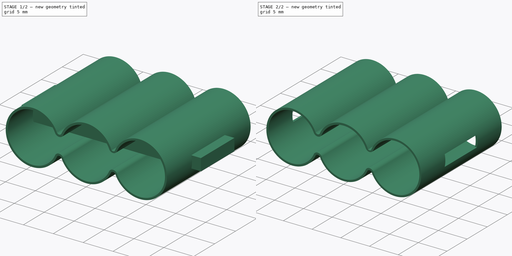
[diagram: build sequence overview — one tinted view per stage of 2, left to right]
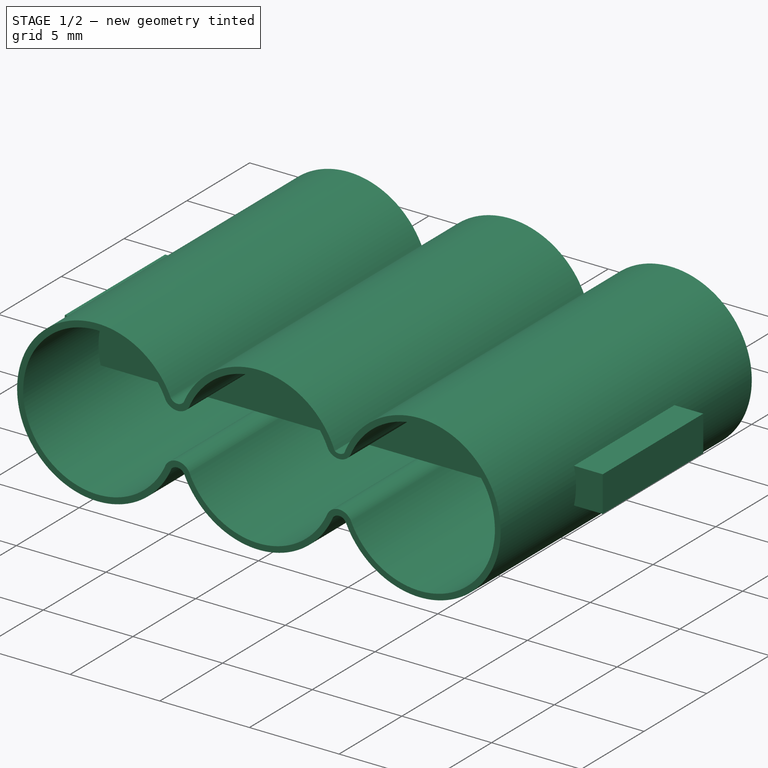
[diagram: stage 1 of 2 — iso view after this stage's code; geometry added in this stage tinted green]
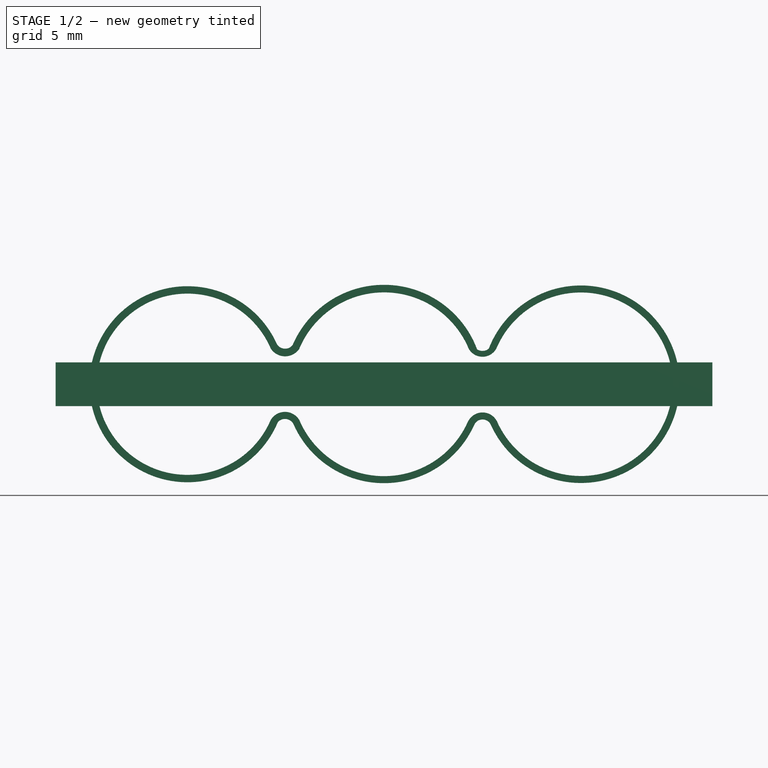
[diagram: stage 1 of 2 — front view after this stage's code; geometry added in this stage tinted green]
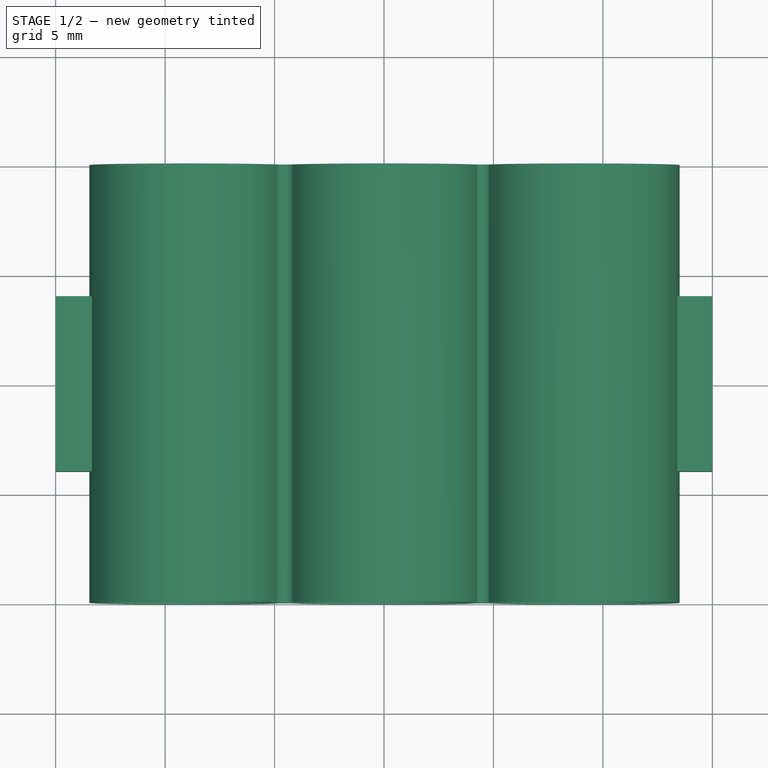
[diagram: stage 1 of 2 — top view after this stage's code; geometry added in this stage tinted green]
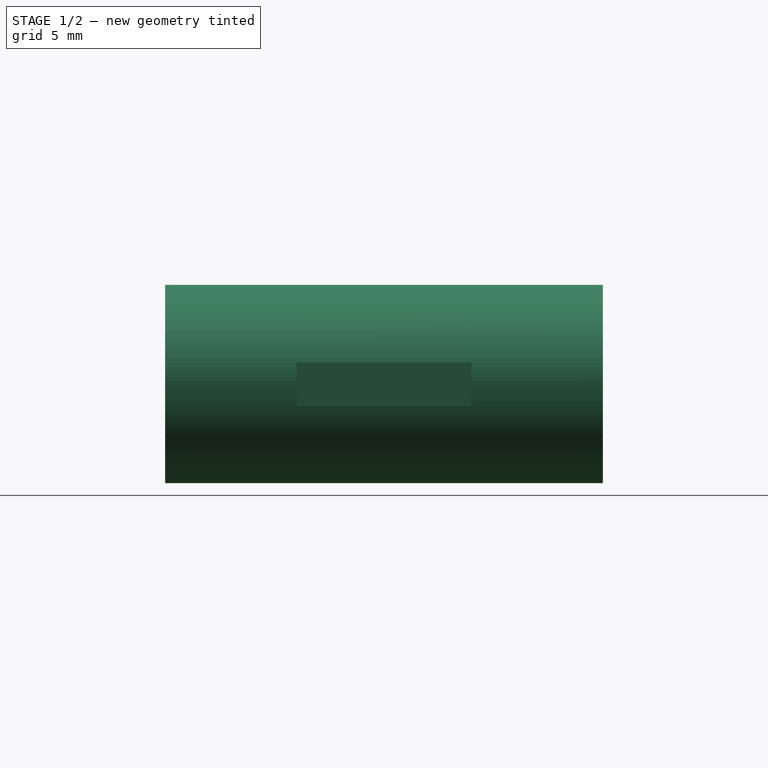
[diagram: stage 1 of 2 — right view after this stage's code; geometry added in this stage tinted green]
FCSTD DOCUMENT  (FreeCAD 0.19R24291 (Git))
Label: actuator8
License: All rights reserved
LicenseURL: http://en.wikipedia.org/wiki/All_rights_reserved
objects: Sketcher::SketchObject×2, Spreadsheet::Sheet×1, PartDesign::Pad×1, PartDesign::Body×1, Part::Box×1, Part::Cut×1
note: 7 computed .brp shape members not serialized (recipe doc carries the construction recipe); baked Part::Feature solids carry a one-line shape summary decoded from their .brp

FEATURE [Spreadsheet::Sheet] Spreadsheet
  cells = B2=pneumatic ; C2=actuator ; D2=three-section; E2==9mm; B4=soft cylinders; D4=out; E4=in; C5=r ; D5(cyl_r_o)=4.5; E5(cyl_r_in)=4.2; B7=shoulder; D7(shuld)=9
FEATURE [Sketcher::SketchObject] Sketch
  FullyConstrained = false
  MapMode = 5
  Placement = pos=(0,0,0) rot=(1,0,0;1.5708rad)
  Support = -> [XZ_Plane]
  expr: Constraints[11] = Spreadsheet.cyl_r_in
  expr: Constraints[13] = Spreadsheet.cyl_r_in
  expr: Constraints[7] = Spreadsheet.shuld
  expr: Constraints[6] = Spreadsheet.shuld
  expr: Constraints[5] = Spreadsheet.cyl_r_o
  expr: Constraints[4] = Spreadsheet.cyl_r_o
  expr: Constraints[12] = Spreadsheet.cyl_r_in
  expr: Constraints[1] = Spreadsheet.cyl_r_o
  sketch-geometry (16):
    g0: ArcOfCircle CenterX=0 CenterY=0 CenterZ=0 NormalX=0 NormalY=0 NormalZ=1 AngleXU=0 Radius=4.5 StartAngle=3.53897 EndAngle=5.86637
    g1: ArcOfCircle CenterX=-9 CenterY=0 CenterZ=0 NormalX=0 NormalY=0 NormalZ=1 AngleXU=0 Radius=4.5 StartAngle=0.407207 EndAngle=5.88776
    g2: ArcOfCircle CenterX=9 CenterY=0 CenterZ=0 NormalX=0 NormalY=0 NormalZ=1 AngleXU=0 Radius=4.5 StartAngle=3.55697 EndAngle=9.04236
    g3: ArcOfCircle CenterX=0 CenterY=0 CenterZ=0 NormalX=0 NormalY=0 NormalZ=1 AngleXU=0 Radius=4.2 StartAngle=3.54071 EndAngle=5.86248
    g4: ArcOfCircle CenterX=-9 CenterY=0 CenterZ=0 NormalX=0 NormalY=0 NormalZ=1 AngleXU=0 Radius=4.2 StartAngle=0.400501 EndAngle=5.88794
    g5: ArcOfCircle CenterX=9 CenterY=0 CenterZ=0 NormalX=0 NormalY=0 NormalZ=1 AngleXU=0 Radius=4.2 StartAngle=3.55872 EndAngle=9.02431
    g6: ArcOfCircle CenterX=0 CenterY=0 CenterZ=0 NormalX=0 NormalY=0 NormalZ=1 AngleXU=0 Radius=4.2 StartAngle=0.411459 EndAngle=2.74323
    g7: ArcOfCircle CenterX=0 CenterY=0 CenterZ=0 NormalX=0 NormalY=0 NormalZ=1 AngleXU=0 Radius=4.5 StartAngle=0.384244 EndAngle=2.73628
    g8: ArcOfCircle CenterX=-4.49939 CenterY=1.99308 CenterZ=0 NormalX=0 NormalY=0 NormalZ=1 AngleXU=0 Radius=0.424634 StartAngle=3.66126 EndAngle=5.74211
    g9: ArcOfCircle CenterX=-4.49939 CenterY=1.99308 CenterZ=0 NormalX=0 NormalY=0 NormalZ=1 AngleXU=0 Radius=0.726016 StartAngle=3.65342 EndAngle=5.75826
    g10: ArcOfCircle CenterX=-4.50187 CenterY=-2.04426 CenterZ=0 NormalX=0 NormalY=0 NormalZ=1 AngleXU=0 Radius=0.754474 StartAngle=0.577886 EndAngle=2.53985
    g11: ArcOfCircle CenterX=-4.50187 CenterY=-2.04426 CenterZ=0 NormalX=0 NormalY=0 NormalZ=1 AngleXU=0 Radius=0.464673 StartAngle=0.709586 EndAngle=2.40876
    g12: ArcOfCircle CenterX=4.50233 CenterY=2.00473 CenterZ=0 NormalX=0 NormalY=0 NormalZ=1 AngleXU=0 Radius=0.729266 StartAngle=3.60342 EndAngle=5.75529
    g13: ArcOfCircle CenterX=4.50233 CenterY=2.00473 CenterZ=0 NormalX=0 NormalY=0 NormalZ=1 AngleXU=0 Radius=0.458522 StartAngle=3.90757 EndAngle=5.50084
    g14: ArcOfCircle CenterX=4.50046 CenterY=-2.04794 CenterZ=0 NormalX=0 NormalY=0 NormalZ=1 AngleXU=0 Radius=0.745071 StartAngle=0.483492 EndAngle=2.67877
    g15: ArcOfCircle CenterX=4.50046 CenterY=-2.04794 CenterZ=0 NormalX=0 NormalY=0 NormalZ=1 AngleXU=0 Radius=0.447124 StartAngle=0.545626 EndAngle=2.61135
  constraints (37):
    c: Coincident(g0,g-1)
    c: Radius(g0) = 4.5
    c: PointOnObject(g1,g-1)
    c: PointOnObject(g2,g-1)
    c: Radius(g2) = 4.5
    c: Radius(g1) = 4.5
    c: Distance(g0,g1) = 9
    c: Distance(g0,g2) = 9
    c: Coincident(g3,g0)
    c: Coincident(g4,g1)
    c: Coincident(g5,g2)
    c: Radius(g4) = 4.2
    c: Radius(g3) = 4.2
    c: Radius(g5) = 4.2
    c: Equal(g3,g6)
    c: Coincident(g3,g6)
    c: Equal(g0,g7)
    c: Coincident(g0,g7)
    c: Coincident(g8,g1)
    c: Coincident(g8,g7)
    c: Coincident(g9,g8)
    c: Coincident(g9,g4)
    c: Coincident(g9,g6)
    c: Coincident(g10,g4)
    c: Coincident(g10,g3)
    c: Coincident(g11,g10)
    c: Coincident(g11,g1)
    c: Coincident(g11,g0)
    c: Coincident(g12,g6)
    c: Coincident(g12,g5)
    c: Coincident(g13,g12)
    c: Coincident(g13,g7)
    c: Coincident(g14,g3)
    c: Coincident(g14,g5)
    c: Coincident(g15,g14)
    c: Coincident(g15,g0)
    c: Coincident(g15,g2)
FEATURE [Sketcher::SketchObject] Sketch001
  FullyConstrained = false
  MapMode = 5
  Placement = pos=(0,0,0) rot=(1,0,0;1.5708rad)
  Support = -> [XZ_Plane]
  sketch-geometry (16):
    g0: ArcOfCircle CenterX=0 CenterY=0 CenterZ=0 NormalX=0 NormalY=0 NormalZ=1 AngleXU=0 Radius=4.19663 StartAngle=0.393932 EndAngle=2.74956
    g1: ArcOfCircle CenterX=0 CenterY=0 CenterZ=0 NormalX=0 NormalY=0 NormalZ=1 AngleXU=0 Radius=4.54277 StartAngle=0.358301 EndAngle=2.73604
    g2: ArcOfCircle CenterX=0 CenterY=0 CenterZ=0 NormalX=0 NormalY=0 NormalZ=1 AngleXU=0 Radius=4.52045 StartAngle=3.55389 EndAngle=5.85773
    g3: ArcOfCircle CenterX=0 CenterY=0 CenterZ=0 NormalX=0 NormalY=0 NormalZ=1 AngleXU=0 Radius=4.19871 StartAngle=3.54539 EndAngle=5.85822
    g4: ArcOfCircle CenterX=-8.97846 CenterY=0 CenterZ=0 NormalX=0 NormalY=0 NormalZ=1 AngleXU=0 Radius=4.13996 StartAngle=0.401884 EndAngle=5.87998
    g5: ArcOfCircle CenterX=-8.97846 CenterY=0 CenterZ=0 NormalX=0 NormalY=0 NormalZ=1 AngleXU=0 Radius=4.47856 StartAngle=0.427751 EndAngle=5.88617
    g6: ArcOfCircle CenterX=8.99435 CenterY=0 CenterZ=0 NormalX=0 NormalY=0 NormalZ=1 AngleXU=0 Radius=4.19158 StartAngle=3.55542 EndAngle=9.02296
    g7: ArcOfCircle CenterX=8.99435 CenterY=0 CenterZ=0 NormalX=0 NormalY=0 NormalZ=1 AngleXU=0 Radius=4.51232 StartAngle=3.56111 EndAngle=9.05666
    g8: ArcOfCircle CenterX=-4.51775 CenterY=2.05955 CenterZ=0 NormalX=0 NormalY=0 NormalZ=1 AngleXU=0 Radius=0.43523 StartAngle=3.62353 EndAngle=5.62187
    g9: ArcOfCircle CenterX=-4.51775 CenterY=2.05955 CenterZ=0 NormalX=0 NormalY=0 NormalZ=1 AngleXU=0 Radius=0.785519 StartAngle=3.73644 EndAngle=5.6636
    g10: ArcOfCircle CenterX=-4.52321 CenterY=-2.02216 CenterZ=0 NormalX=0 NormalY=0 NormalZ=1 AngleXU=0 Radius=0.759733 StartAngle=0.512348 EndAngle=2.59055
    g11: ArcOfCircle CenterX=-4.52321 CenterY=-2.02216 CenterZ=0 NormalX=0 NormalY=0 NormalZ=1 AngleXU=0 Radius=0.435893 StartAngle=0.50459 EndAngle=2.41234
    g12: ArcOfCircle CenterX=4.49796 CenterY=1.97665 CenterZ=0 NormalX=0 NormalY=0 NormalZ=1 AngleXU=0 Radius=0.454432 StartAngle=4.14642 EndAngle=5.39419
    g13: ArcOfCircle CenterX=4.49796 CenterY=1.97665 CenterZ=0 NormalX=0 NormalY=0 NormalZ=1 AngleXU=0 Radius=0.722292 StartAngle=3.67279 EndAngle=5.79724
    g14: ArcOfCircle CenterX=4.50184 CenterY=-2.02736 CenterZ=0 NormalX=0 NormalY=0 NormalZ=1 AngleXU=0 Radius=0.738624 StartAngle=0.481209 EndAngle=2.72882
    g15: ArcOfCircle CenterX=4.50184 CenterY=-2.02736 CenterZ=0 NormalX=0 NormalY=0 NormalZ=1 AngleXU=0 Radius=0.416977 StartAngle=0.471499 EndAngle=2.74355
  constraints (28):
    c: Coincident(g0,g-1)
    c: Coincident(g1,g0)
    c: Coincident(g2,g0)
    c: Coincident(g3,g0)
    c: PointOnObject(g4,g-1)
    c: Coincident(g5,g4)
    c: PointOnObject(g6,g-1)
    c: Coincident(g7,g6)
    c: Coincident(g8,g5)
    c: Coincident(g8,g1)
    c: Coincident(g9,g8)
    c: Coincident(g9,g4)
    c: Coincident(g9,g0)
    c: Coincident(g10,g4)
    c: Coincident(g10,g3)
    c: Coincident(g11,g10)
    c: Coincident(g11,g5)
    c: Coincident(g11,g2)
    c: Coincident(g12,g1)
    c: Coincident(g12,g7)
    c: Coincident(g13,g12)
    c: Coincident(g13,g0)
    c: Coincident(g13,g6)
    c: Coincident(g14,g3)
    c: Coincident(g14,g6)
    c: Coincident(g15,g14)
    c: Coincident(g15,g2)
    c: Coincident(g15,g7)
FEATURE [PartDesign::Pad] Pad
  Direction = (1,1,1)
  Length = 20
  Length2 = 100
  Placement = pos=(0,0,0) rot=(1,0,0;1.5708rad)
  Profile = -> Sketch001
  Type = 0
FEATURE [PartDesign::Body] Body
  Group = -> [Sketch,Sketch001,Pad]
  Origin = -> Origin
  Tip = -> Pad
FEATURE [Part::Box] Box  label="Cube"
  AttacherType = Attacher::AttachEngine3D
  Height = 2
  Length = 30
  Placement = pos=(-15,-14,-1) rot=(0,0,1;0rad)
  Width = 8
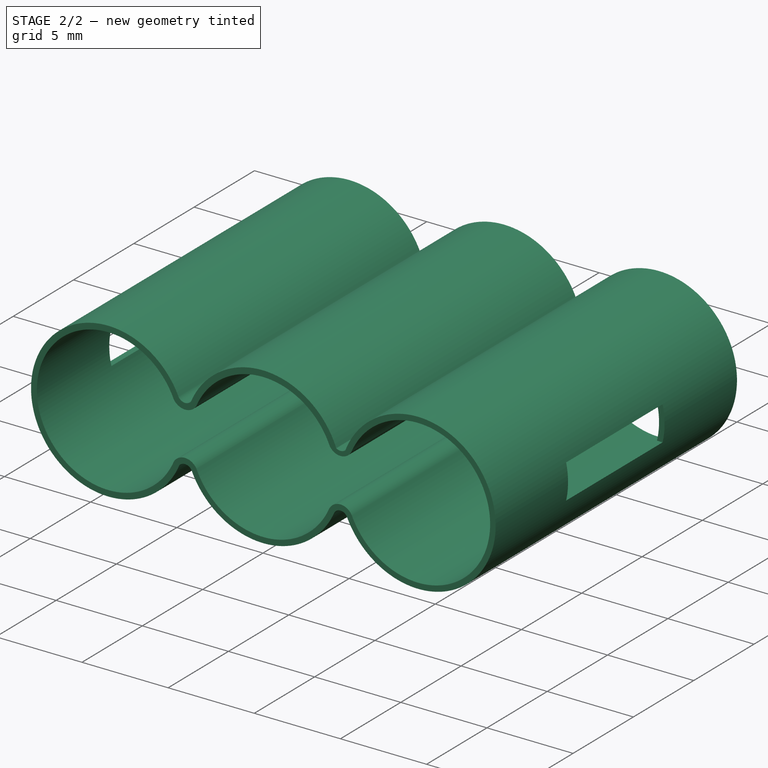
[diagram: stage 2 of 2 — iso view after this stage's code; geometry added in this stage tinted green]
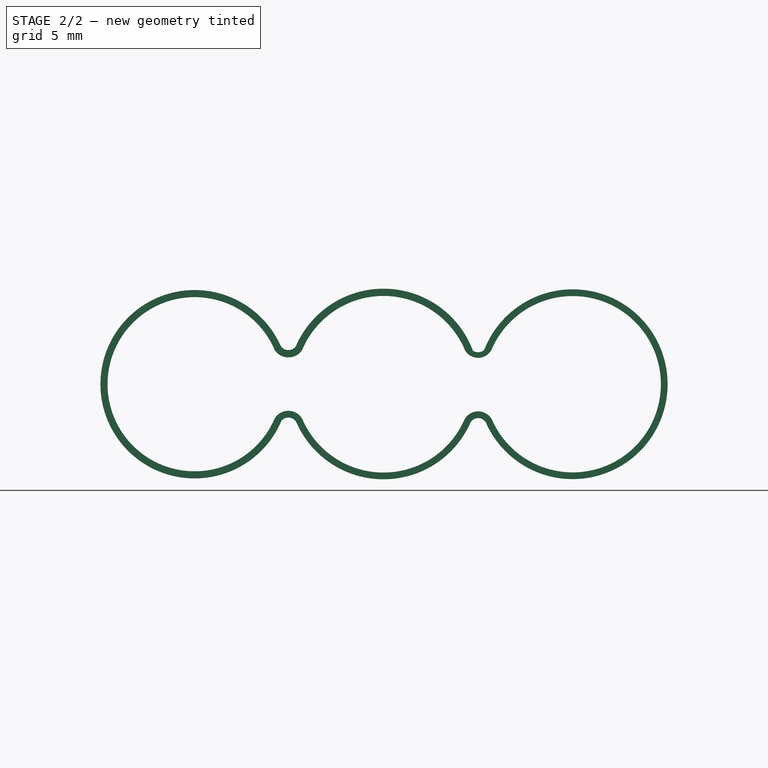
[diagram: stage 2 of 2 — front view after this stage's code; geometry added in this stage tinted green]
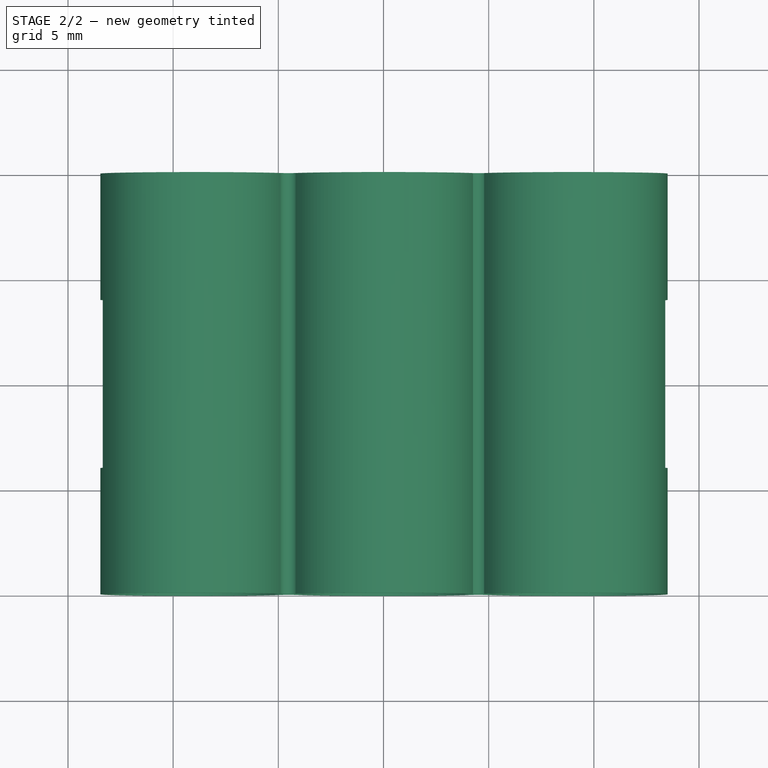
[diagram: stage 2 of 2 — top view after this stage's code; geometry added in this stage tinted green]
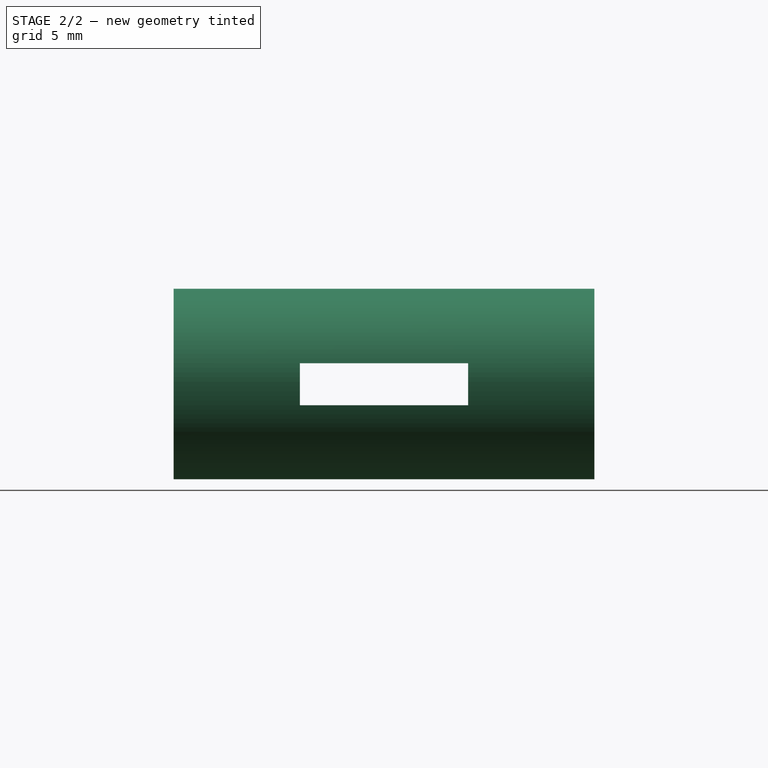
[diagram: stage 2 of 2 — right view after this stage's code; geometry added in this stage tinted green]
FEATURE [Part::Cut] Cut
  Base = -> Body
  Tool = -> Box
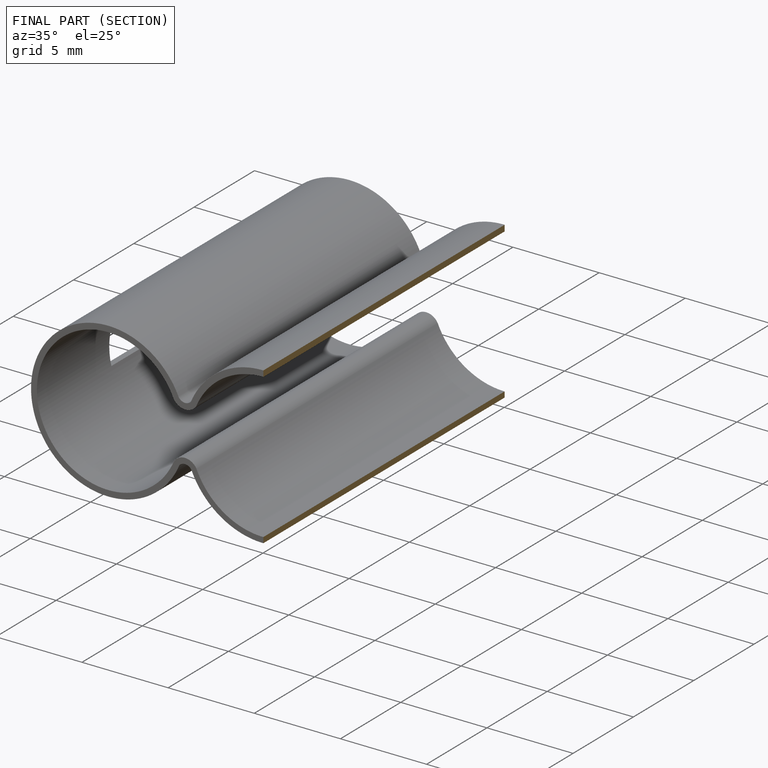
[diagram: finished part — half-section view (interior)]
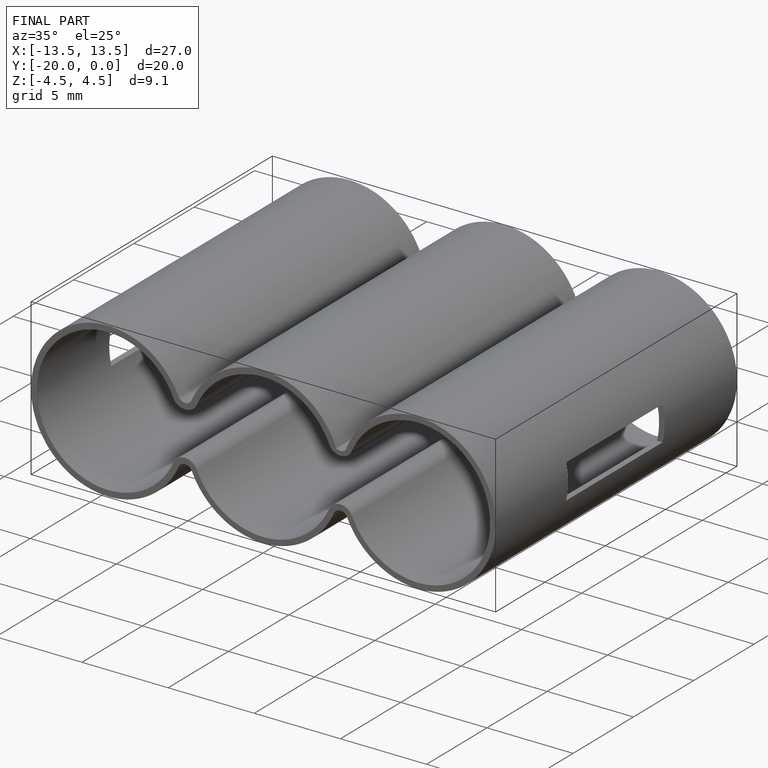
[diagram: finished part — iso view with bounding-box wireframe]
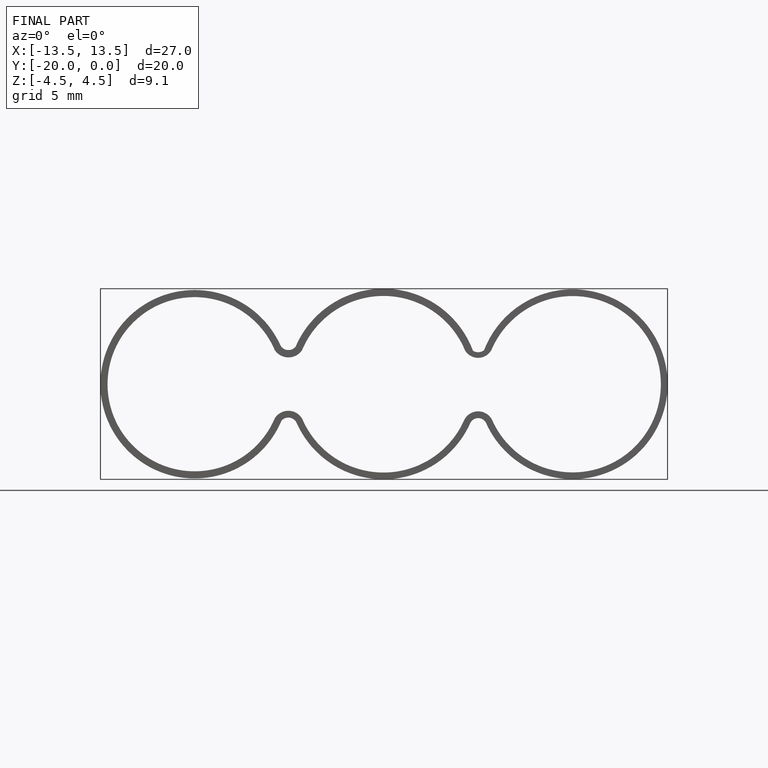
[diagram: finished part — front view with bounding-box wireframe]
